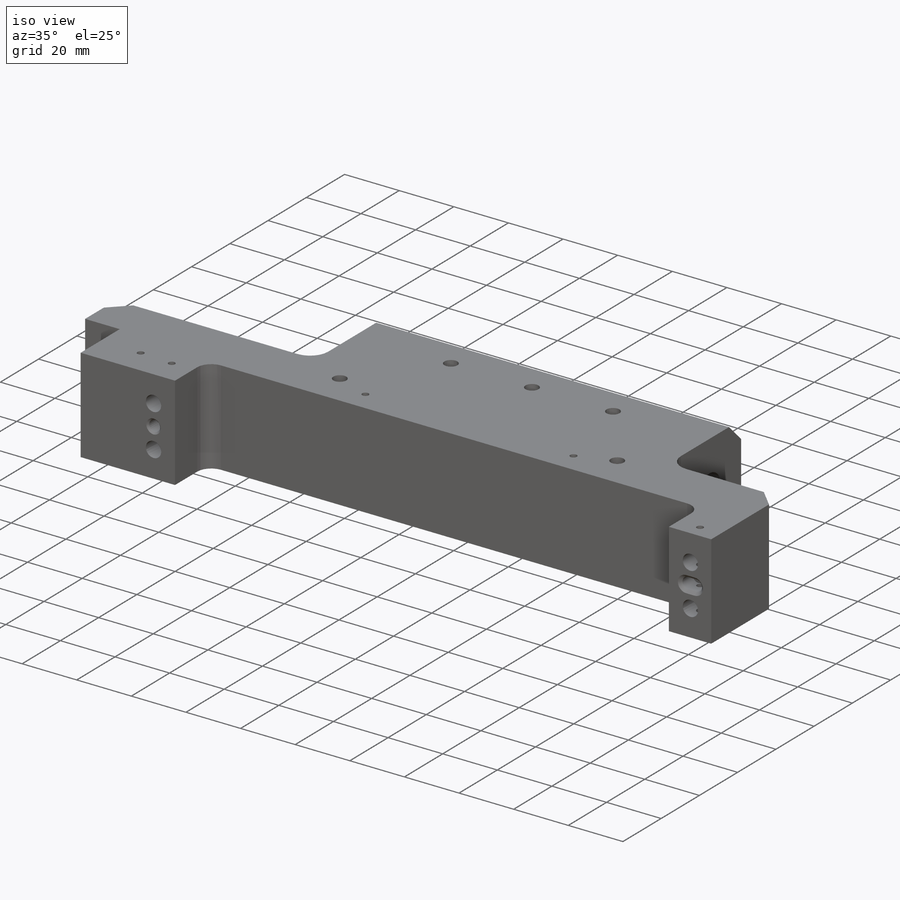
[diagram: iso view]
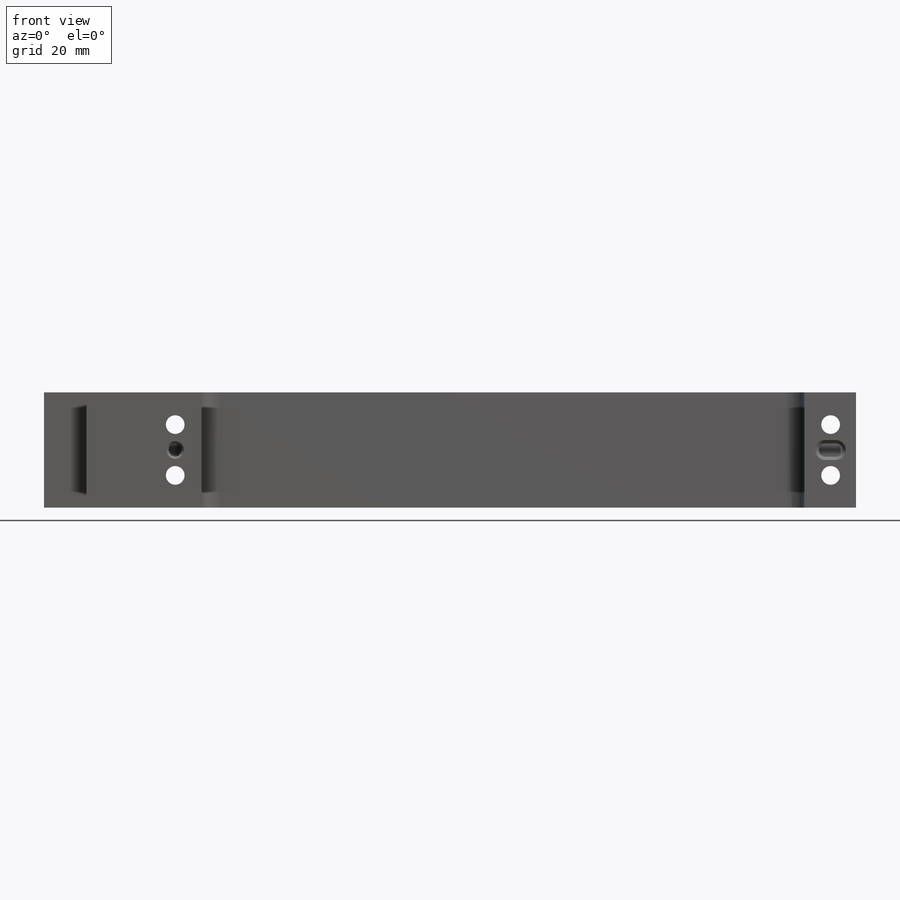
[diagram: front view]
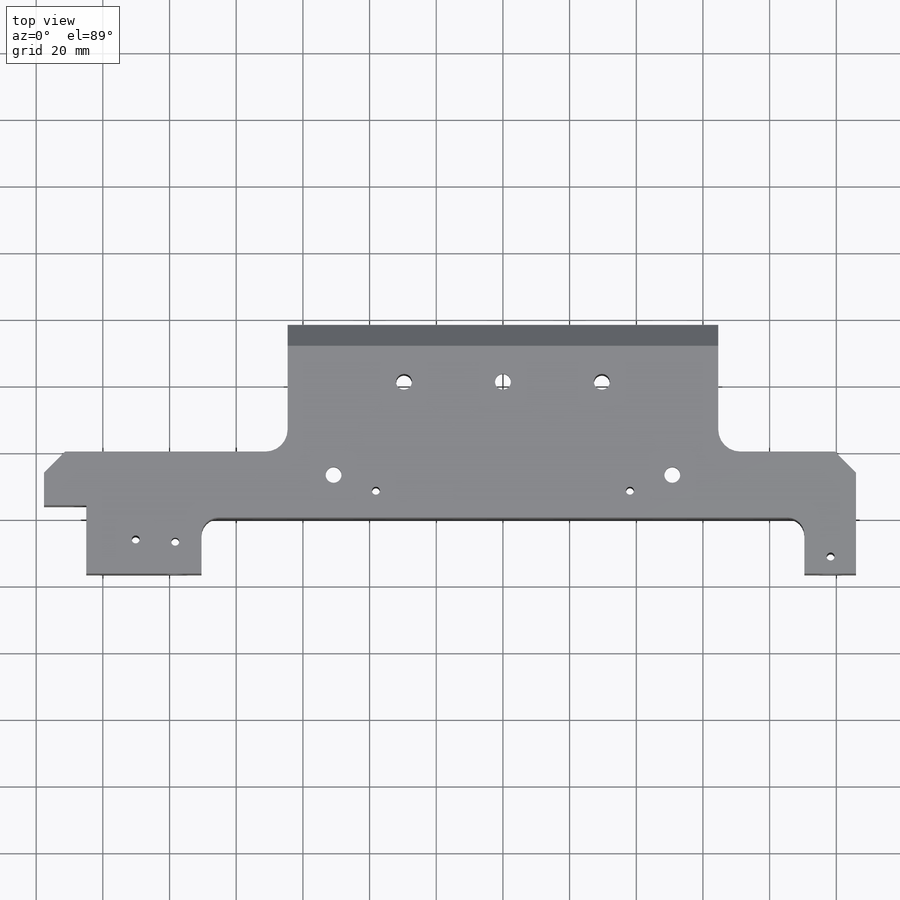
[diagram: top view]
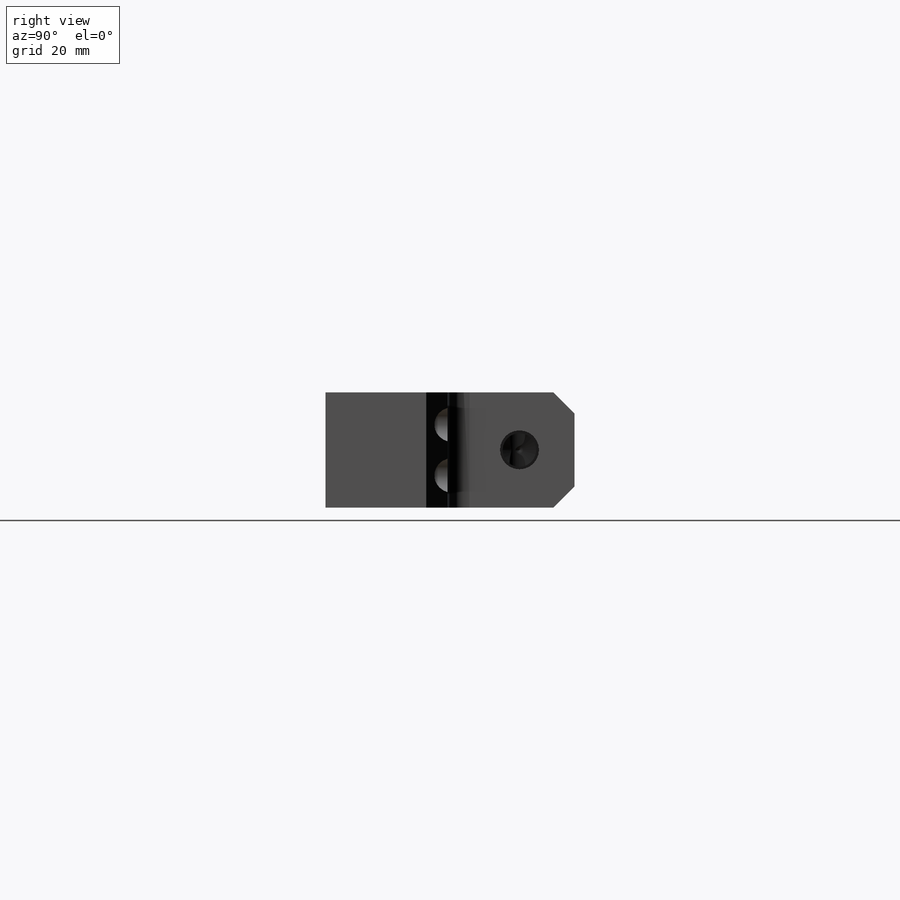
[diagram: right view]
SOLIDWORKS PART (.sldprt)
format: sldprt  version: not decoded by parser v0  size: 1,110,016 bytes
history: native  units: mm
features: sketch x26, extrude x17, hole x10, plane x3, fillet x2, chamfer x2, material x1, cut_extrude x1, mirror x1 (+11 scaffold rows collapsed)
feature tree (74):
  scaffold x11  (default folders/planes/origin — collapsed)
  material  "6061-T6 Al"
  plane  "XY"
  plane  "XZ"
  plane  "YZ"
  sketch  "Sketch1"  dims[D1=34.544mm D2=211.836mm]
  extrude  "Extrude1"  Depth=19.812mm
  sketch  "Sketch2"  dims[c1.D1=12.7mm c1.D2=182.88mm c1.D3=182.88mm c2.D2=182.88mm c2.D3=182.88mm c3.D2=182.88mm c3.D1=180.848mm]
  extrude  "Extrude2"  Depth=16.764mm
  sketch  "Sketch6"  dims[D1=129.1844mm]
  extrude  "Extrude4"  Depth=38.1mm ID=164619364
  extrude  "ID"  [1 undecoded]
  hole  "CBORE for #10 Socket Head Cap Screw1"  Diameter=5.6134mm Depth=36.576025mm
  sketch  "Sketch46"  dims[D1=196.596mm D2=15.24mm]
  sketch  "Sketch45"  dims[hole-wizard template sketch: 42 standard entries collapsed; hole parameters kept: c12.Thru Hole Depth=~36.576025mm c12.C'Bore Dia.=~10.31748mm c12.C'Bore Depth=6.731mm]
  sketch  "Sketch21"  dims[c1.D1=3.1877mm c1.D2=3.175mm c2.D1=~3.98272mm]
  cut_extrude  "Cut-Extrude15"  Depth=6.35mm
  hole  "5/32 (0.15625) Diameter Hole1"  Diameter=3.98272mm Depth=9.525mm
  sketch  "Sketch56"
  sketch  "Sketch55"  dims[hole-wizard template sketch: 39 standard entries collapsed; hole parameters kept: c13.Hole Dia.=~3.98272mm c13.Hole Depth=9.525mm c13.Near C'Sink Dia.=~5.25272mm c13.D4=~33.297463mm c13.Near C'Sink Angle=90.0deg c14.D5=~14.816244mm c14.Drill Angle=118.0deg]
  hole  "Tapped Hole for 3/8-16 Helicoil1"  Diameter=10.0838mm Depth=34.925mm
  sketch  "Sketch27"  dims[D1=19.05mm D2=16.51mm]
  sketch  "Sketch26"  dims[hole-wizard template sketch: 28 standard entries collapsed; hole parameters kept: c8.Tap Drill Dia.=10.0838mm c8.Tap Drill Depth=34.925mm c8.Thread Major Dia.=~11.68908mm c8.Thread Depth=25.4mm c8.D5=~14.816244mm c8.Drill Angle=118.0deg]
  mirror  "Mirror7"
  extrude  "faceID"  Depth=0 cosFaceIDTag=0
  extrude  "faceID"  [1 undecoded]
  extrude  "faceID"  [1 undecoded]
  extrude  "faceID"  [1 undecoded]
  extrude  "faceID"  [1 undecoded]
  extrude  "faceID"  [1 undecoded]
  extrude  "faceID"  [1 undecoded]
  extrude  "faceID"  [1 undecoded]
  extrude  "faceID"  [1 undecoded]
  extrude  "faceID"  [1 undecoded]
  extrude  "faceID"  [1 undecoded]
  fillet  "Fillet1"  Radius=6.604mm
  hole  "Tapped Hole for 1/4-20 Helicoil1"  Diameter=6.9088mm Depth=23.9014mm
  sketch  "Sketch35"  dims[D1=12.827mm D2=101.6mm D3=27.94mm]
  sketch  "Sketch34"  dims[hole-wizard template sketch: 28 standard entries collapsed; hole parameters kept: c8.Tap Drill Dia.=6.9088mm c8.Tap Drill Depth=23.9014mm c8.Thread Major Dia.=~8.09498mm c8.Thread Depth=15.7226mm c8.D5=~14.816244mm c8.Drill Angle=118.0deg]
  hole  "3/16 (0.1875) Diameter Hole1"  Diameter=4.7625mm Depth=34.54405mm
  sketch  "Sketch39"  dims[D1=~29.673995mm D2=~29.673995mm]
  sketch  "Sketch38"  dims[hole-wizard template sketch: 60 standard entries collapsed; hole parameters kept: c18.Thru Hole Depth=~34.54405mm]
  fillet  "Fillet2"  Radius=5.08mm
  chamfer  "Chamfer4"  Distance=1.016mm Angle=45deg
  sketch  "Sketch58"  dims[c1.D1=12.7mm c1.D2=34.544mm c2.D1=36.576mm]
  extrude  "Extrude5"  Depth=19.05mm
  sketch  "Sketch80"  dims[D1=16.129mm]
  extrude  "Extrude6"  Depth=12.7mm
  hole  "Tapped Hole for #10-32 Helicoil1"  Diameter=5.1054mm Depth=6.8453mm
  sketch  "3DSketch1"  dims[c1.D1=~21.734055mm c1.D2=23.876mm c2.D2=~4.381698mm c2.D4=9.144mm c2.D3=~22.331825mm c3.D2=12.7mm c3.D1=11.43mm c4.D2=13.97mm c4.D3=7.62mm c4.D4=7.874mm]
  sketch  "Sketch72"  dims[hole-wizard template sketch: 41 standard entries collapsed; hole parameters kept: c12.Thru Tap Drill Dia.=5.1054mm c12.Thru Tap Drill Depth=6.8453mm c12.Thread Major Dia.=~5.93598mm c12.Thread Depth=8.5598mm c12.Near C'Sink Dia.=6.3754mm c12.D6=~4.399409mm c12.Near C'Sink Angle=90.0deg]
  hole  "Tapped Hole for 1/4-20 Helicoil2"  Diameter=6.7564mm Depth=14.8082mm
  sketch  "Sketch77"  dims[c1.D1=19.05mm c1.D2=~7.785395mm c1.D3=~9.486605mm c2.D2=9.4996mm c2.D3=10.2235mm]
  sketch  "Sketch76"  dims[hole-wizard template sketch: 27 standard entries collapsed; hole parameters kept: c8.Tap Drill Depth=14.8082mm c8.Thread Major Dia.=~8.09498mm c8.Thread Depth=11.6586mm c8.Near C'Sink Dia.=8.89mm c8.D6=~4.399409mm c8.Near C'Sink Angle=90.0deg c8.D7=~14.816244mm c8.Drill Angle=118.0deg]
  hole  "3/32 (0.09375) Diameter Hole1"  Diameter=2.38125mm Depth=34.54405mm
  sketch  "Sketch75"  dims[D1=5.08mm D2=11.7475mm D3=38.1mm D4=38.1mm]
  sketch  "Sketch74"  dims[hole-wizard template sketch: 60 standard entries collapsed; hole parameters kept: c18.Thru Hole Depth=~34.54405mm]
  chamfer  "Chamfer1"  Distance=6.35mm Angle=45deg
  hole  "CBORE for #4 Socket Head Cap Screw1"  Diameter=3.175mm Depth=6.35mm
  sketch  "Sketch79"
  sketch  "Sketch78"  dims[hole-wizard template sketch: 28 standard entries collapsed; hole parameters kept: c8.Hole Dia.=3.175mm c8.Hole Depth=6.35mm c8.C'Bore Dia.=3.2004mm c8.C'Bore Depth=1.524mm c8.D5=~14.816244mm c8.Drill Angle=118.0deg]
  hole  "3/32 (0.09375) Diameter Hole2"  Diameter=2.38125mm Depth=22.86mm
  sketch  "Sketch83"  dims[D1=9.525mm D2=17.272mm]
  sketch  "Sketch82"  dims[hole-wizard template sketch: 47 standard entries collapsed; hole parameters kept: c15.Hole Depth=22.86mm c15.D3=~14.816244mm c15.Drill Angle=118.0deg]
decode coverage: 45 of 59 modeling features carry decoded parameters
note: ~ marks probable driven/reference dimensions
note: 11 parameter values undecoded
summary: no parameter record found for 11 features; Diameter pulled from absorbed wizard sketch
note: suppression state not decoded; provenance and decode notes live in map.json
